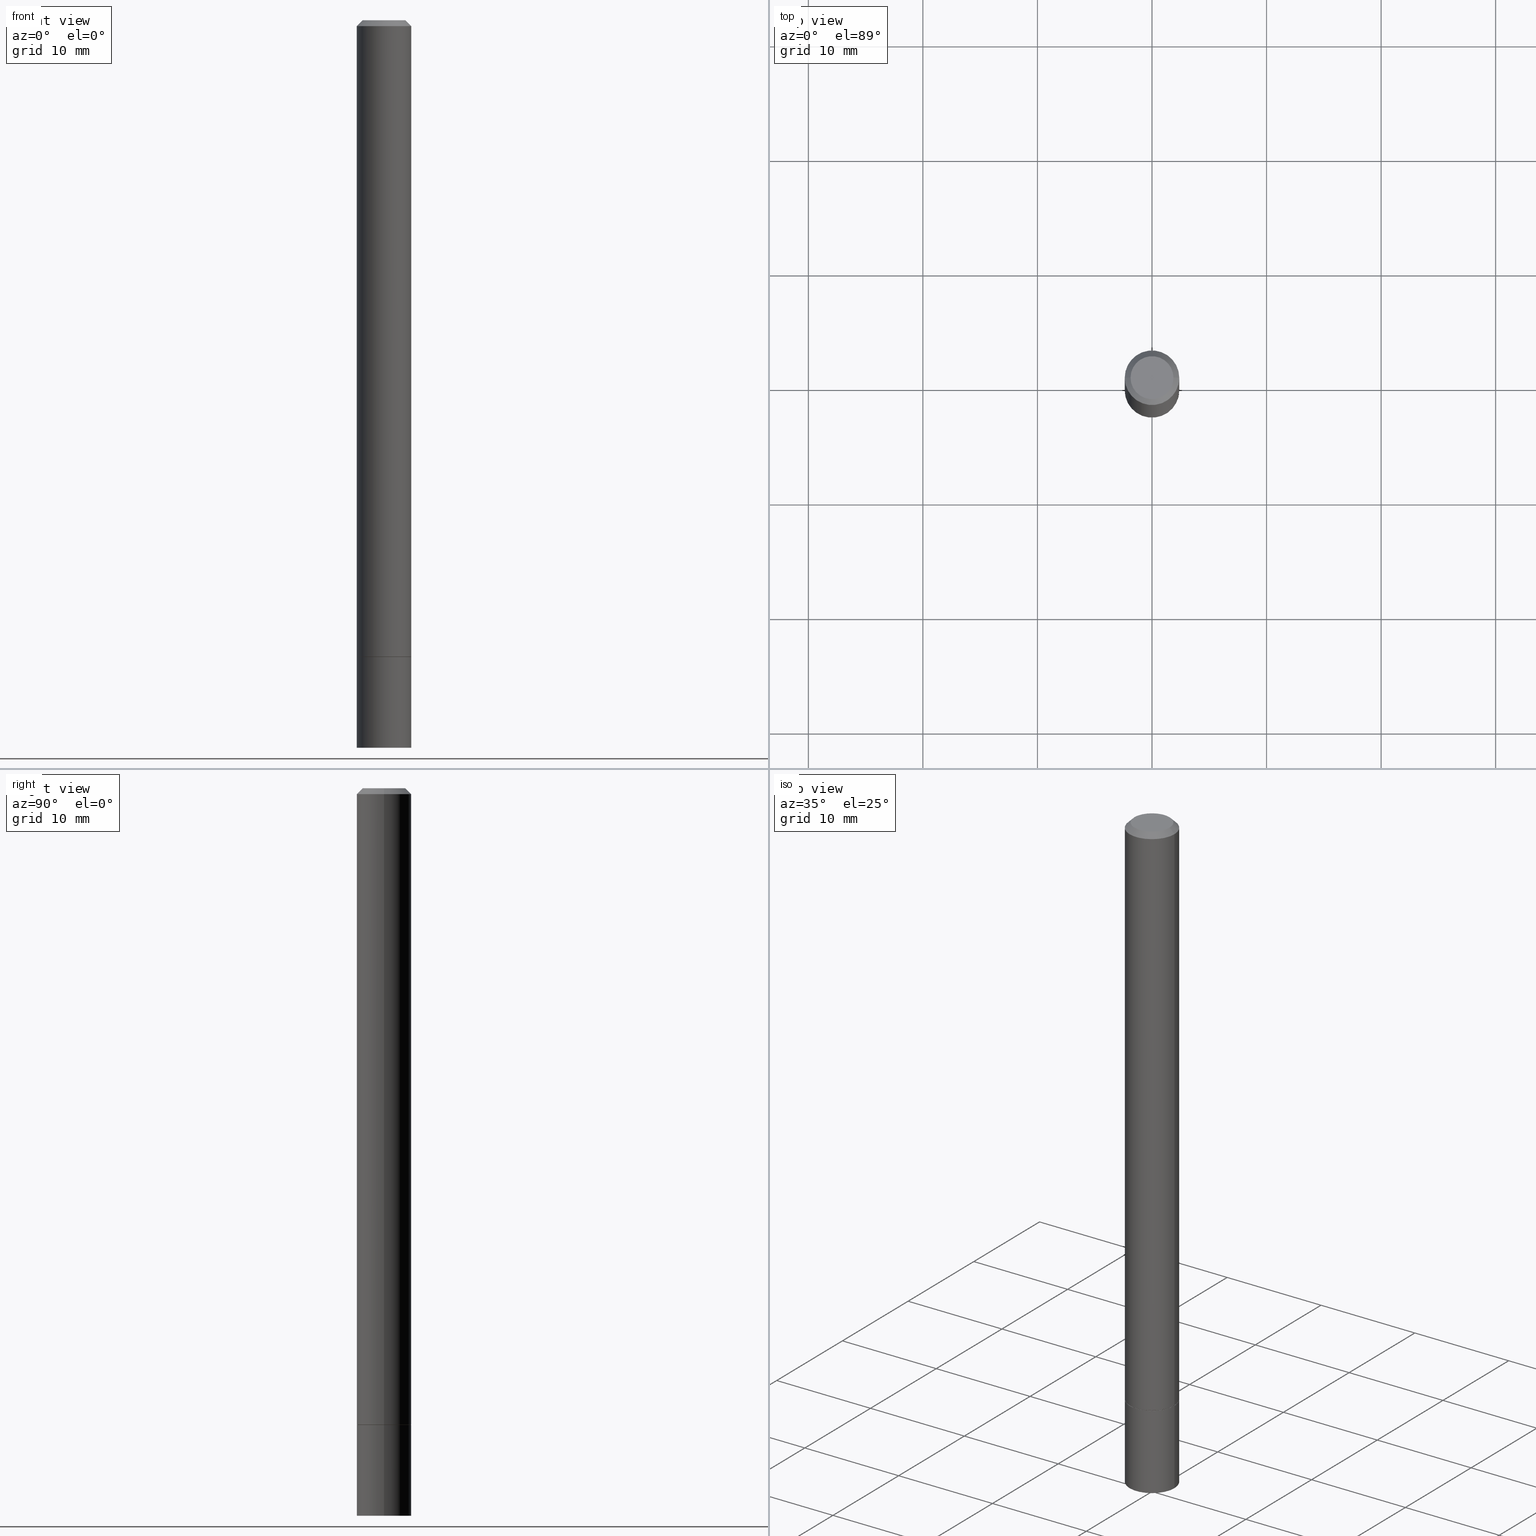
[diagram: canonical four-view strip — front | top / right | iso, engineering-drawing reading convention]
A machine part, canonical four-view strip (front | top / right | iso — engineering-drawing reading convention). The complete STEP part file that produces these views, byte-faithful:
ISO-10303-21;
HEADER;
FILE_DESCRIPTION (( 'STEP AP203' ),
    '1' );
FILE_NAME ('34857.STEP',
    '2024-02-27T17:55:11',
    ( '' ),
    ( '' ),
    'SwSTEP 2.0',
    'SolidWorks 2023',
    '' );
FILE_SCHEMA (( 'CONFIG_CONTROL_DESIGN' ));
ENDSEC;

DATA;
#1 = DIRECTION ( 'NONE',  ( -2.445468806185136597E-29, 3.491481338843145583E-15, 1.000000000000000000 ) ) ;
#2 = EDGE_LOOP ( 'NONE', ( #252, #256, #99, #11 ) ) ;
#3 = CONICAL_SURFACE ( 'NONE', #48, 0.09374999999999972244, 0.7853981633974477239 ) ;
#4 = DIRECTION ( 'NONE',  ( 1.000000000000000000, -6.982962677686268288E-15, 0.000000000000000000 ) ) ;
#5 = MECHANICAL_CONTEXT ( 'NONE', #170, 'mechanical' ) ;
#6 = DIRECTION ( 'NONE',  ( -1.000000000000000000, 6.982962677686265922E-15, -4.876176775795935793E-29 ) ) ;
#7 = CALENDAR_DATE ( 2024, 27, 2 ) ;
#8 = ORIENTED_EDGE ( 'NONE', *, *, #327, .F. ) ;
#9 = FACE_OUTER_BOUND ( 'NONE', #67, .T. ) ;
#10 = APPROVAL_DATE_TIME ( #160, #127 ) ;
#11 = ORIENTED_EDGE ( 'NONE', *, *, #143, .T. ) ;
#12 = AXIS2_PLACEMENT_3D ( 'NONE', #203, #227, #253 ) ;
#13 = CARTESIAN_POINT ( 'NONE',  ( 4.890937612370289799E-31, -6.982962677686315028E-17, -0.02000000000000006981 ) ) ;
#14 = CC_DESIGN_APPROVAL ( #218, ( #361 ) ) ;
#15 = APPLICATION_PROTOCOL_DEFINITION ( 'international standard', 'config_control_design', 1994, #195 ) ;
#16 = VERTEX_POINT ( 'NONE', #342 ) ;
#17 = APPROVAL_STATUS ( 'not_yet_approved' ) ;
#18 = ORIENTED_EDGE ( 'NONE', *, *, #199, .F. ) ;
#19 = DIRECTION ( 'NONE',  ( 1.000000000000000000, -6.982962677686268288E-15, 0.000000000000000000 ) ) ;
#20 = ADVANCED_FACE ( 'NONE', ( #92 ), #205, .F. ) ;
#21 = ORIENTED_EDGE ( 'NONE', *, *, #75, .F. ) ;
#22 = EDGE_CURVE ( 'NONE', #264, #46, #40, .T. ) ;
#23 = MANIFOLD_SOLID_BREP ( 'Body-Move/Copy2[1]', #54 ) ;
#24 = CIRCLE ( 'NONE', #274, 0.09374999999999972244 ) ;
#25 = EDGE_CURVE ( 'NONE', #312, #120, #208, .T. ) ;
#26 = AXIS2_PLACEMENT_3D ( 'NONE', #121, #52, #281 ) ;
#27 = EDGE_LOOP ( 'NONE', ( #161, #262 ) ) ;
#28 = AXIS2_PLACEMENT_3D ( 'NONE', #363, #211, #166 ) ;
#29 = AXIS2_PLACEMENT_3D ( 'NONE', #196, #1, #88 ) ;
#30 = FACE_OUTER_BOUND ( 'NONE', #345, .T. ) ;
#31 = EDGE_CURVE ( 'NONE', #16, #46, #175, .T. ) ;
#32 = FACE_OUTER_BOUND ( 'NONE', #27, .T. ) ;
#33 = ORIENTED_EDGE ( 'NONE', *, *, #143, .F. ) ;
#34 = FACE_OUTER_BOUND ( 'NONE', #2, .T. ) ;
#35 = VECTOR ( 'NONE', #124, 39.37007874015748143 ) ;
#36 = CARTESIAN_POINT ( 'NONE',  ( 6.113672015462842613E-29, -8.728703347107864943E-15, -2.500000000000000000 ) ) ;
#37 = PERSON_AND_ORGANIZATION_ROLE ( 'design_owner' ) ;
#38 = VERTEX_POINT ( 'NONE', #235 ) ;
#39 = DATE_TIME_ROLE ( 'classification_date' ) ;
#40 = LINE ( 'NONE', #343, #272 ) ;
#41 = DIRECTION ( 'NONE',  ( 0.000000000000000000, 0.000000000000000000, 1.000000000000000000 ) ) ;
#42 = ORIENTED_EDGE ( 'NONE', *, *, #75, .T. ) ;
#43 = VECTOR ( 'NONE', #331, 39.37007874015748143 ) ;
#44 = COORDINATED_UNIVERSAL_TIME_OFFSET ( 5, 0, .BEHIND. ) ;
#45 = DIRECTION ( 'NONE',  ( 1.000000000000000000, -6.982962677686263555E-15, 0.000000000000000000 ) ) ;
#46 = VERTEX_POINT ( 'NONE', #269 ) ;
#47 = DIRECTION ( 'NONE',  ( -2.445468806185136597E-29, 3.491481338843145583E-15, 1.000000000000000000 ) ) ;
#48 = AXIS2_PLACEMENT_3D ( 'NONE', #321, #66, #292 ) ;
#49 = UNCERTAINTY_MEASURE_WITH_UNIT (LENGTH_MEASURE( 1.000000000000000082E-05 ), #221, 'distance_accuracy_value', 'NONE');
#50 = AXIS2_PLACEMENT_3D ( 'NONE', #68, #100, #106 ) ;
#51 = PRODUCT_RELATED_PRODUCT_CATEGORY ( 'detail', '', ( #140 ) ) ;
#52 = DIRECTION ( 'NONE',  ( -2.445468806185136597E-29, 3.491481338843145583E-15, 1.000000000000000000 ) ) ;
#53 = EDGE_CURVE ( 'NONE', #65, #359, #210, .T. ) ;
#54 = CLOSED_SHELL ( 'NONE', ( #304, #267, #133, #307 ) ) ;
#55 = ORIENTED_EDGE ( 'NONE', *, *, #246, .T. ) ;
#56 = CC_DESIGN_APPROVAL ( #127, ( #154 ) ) ;
#57 = DIRECTION ( 'NONE',  ( -1.000000000000000000, 6.982962677686265922E-15, -4.876176775795935793E-29 ) ) ;
#58 = FACE_OUTER_BOUND ( 'NONE', #348, .T. ) ;
#59 = CARTESIAN_POINT ( 'NONE',  ( 0.000000000000000000, 0.000000000000000000, 0.000000000000000000 ) ) ;
#60 = APPROVAL_ROLE ( '' ) ;
#61 = EDGE_LOOP ( 'NONE', ( #266, #21 ) ) ;
#62 = AXIS2_PLACEMENT_3D ( 'NONE', #320, #291, #297 ) ;
#63 = CC_DESIGN_PERSON_AND_ORGANIZATION_ASSIGNMENT ( #232, #325, ( #154 ) ) ;
#64 = DIRECTION ( 'NONE',  ( -2.445468806185136597E-29, 3.491481338843145583E-15, 1.000000000000000000 ) ) ;
#65 = VERTEX_POINT ( 'NONE', #277 ) ;
#66 = DIRECTION ( 'NONE',  ( 2.445468806185136597E-29, -3.491481338843145583E-15, -1.000000000000000000 ) ) ;
#67 = EDGE_LOOP ( 'NONE', ( #233, #182, #317, #270 ) ) ;
#68 = CARTESIAN_POINT ( 'NONE',  ( 5.347017544723800702E-29, -7.634123947380537240E-15, -2.186500000000000110 ) ) ;
#69 = PERSON_AND_ORGANIZATION_ROLE ( 'creator' ) ;
#70 = DIRECTION ( 'NONE',  ( -0.7071067811865232589, 7.493145998870265808E-15, 0.7071067811865715536 ) ) ;
#71 = AXIS2_PLACEMENT_3D ( 'NONE', #296, #41, #265 ) ;
#72 = CALENDAR_DATE ( 2024, 27, 2 ) ;
#73 = ORIENTED_EDGE ( 'NONE', *, *, #199, .T. ) ;
#74 = DIRECTION ( 'NONE',  ( 2.438088387897960049E-29, -3.491481338843145188E-15, -1.000000000000000000 ) ) ;
#75 = EDGE_CURVE ( 'NONE', #65, #184, #242, .T. ) ;
#76 = CIRCLE ( 'NONE', #29, 0.09374999999999998612 ) ;
#77 = ADVANCED_FACE ( 'NONE', ( #103 ), #152, .T. ) ;
#78 = DESIGN_CONTEXT ( 'detailed design', #195, 'design' ) ;
#79 = CIRCLE ( 'NONE', #225, 0.09374999999999972244 ) ;
#80 = APPROVAL_PERSON_ORGANIZATION ( #293, #127, #153 ) ;
#81 = EDGE_CURVE ( 'NONE', #184, #167, #183, .T. ) ;
#82 = CARTESIAN_POINT ( 'NONE',  ( 4.890937612370289799E-31, -6.982962677686315028E-17, -0.02000000000000006981 ) ) ;
#83 = DIRECTION ( 'NONE',  ( 1.000000000000000000, -6.982962677686262766E-15, 0.000000000000000000 ) ) ;
#84 = VECTOR ( 'NONE', #70, 39.37007874015748854 ) ;
#85 = APPLICATION_PROTOCOL_DEFINITION ( 'international standard', 'config_control_design', 1994, #170 ) ;
#86 = ORIENTED_EDGE ( 'NONE', *, *, #31, .F. ) ;
#87 = CARTESIAN_POINT ( 'NONE',  ( 0.09374999999999972244, -7.130013140679423114E-16, -0.02000000000000006981 ) ) ;
#88 = DIRECTION ( 'NONE',  ( 1.000000000000000000, -6.982962677686263555E-15, 0.000000000000000000 ) ) ;
#89 = DIRECTION ( 'NONE',  ( 2.438088387897960049E-29, -3.491481338843145188E-15, -1.000000000000000000 ) ) ;
#90 = DIRECTION ( 'NONE',  ( 2.438088387897960049E-29, -3.491481338843145188E-15, -1.000000000000000000 ) ) ;
#91 = COORDINATED_UNIVERSAL_TIME_OFFSET ( 5, 0, .BEHIND. ) ;
#92 = FACE_OUTER_BOUND ( 'NONE', #61, .T. ) ;
#93 = CIRCLE ( 'NONE', #26, 0.09374999999999998612 ) ;
#94 = CIRCLE ( 'NONE', #163, 0.09374999999999998612 ) ;
#95 = DIRECTION ( 'NONE',  ( -2.445468806185136877E-29, 3.491481338843145188E-15, 1.000000000000000000 ) ) ;
#96 = CYLINDRICAL_SURFACE ( 'NONE', #303, 0.09374999999999998612 ) ;
#97 = PRODUCT_DEFINITION_SHAPE ( 'NONE', 'NONE',  #212 ) ;
#98 = SHAPE_DEFINITION_REPRESENTATION ( #97, #202 ) ;
#99 = ORIENTED_EDGE ( 'NONE', *, *, #25, .T. ) ;
#100 = DIRECTION ( 'NONE',  ( -2.445468806185136597E-29, 3.491481338843145583E-15, 1.000000000000000000 ) ) ;
#101 = PERSON_AND_ORGANIZATION ( #107, #280 ) ;
#102 = ORIENTED_EDGE ( 'NONE', *, *, #192, .F. ) ;
#103 = FACE_OUTER_BOUND ( 'NONE', #200, .T. ) ;
#104 = VECTOR ( 'NONE', #118, 39.37007874015748143 ) ;
#105 = ORIENTED_EDGE ( 'NONE', *, *, #168, .F. ) ;
#106 = DIRECTION ( 'NONE',  ( 1.000000000000000000, -6.982962677686263555E-15, 0.000000000000000000 ) ) ;
#107 = PERSON ( 'UNSPECIFIED', 'UNSPECIFIED', 'UNSPECIFIED', ('UNSPECIFIED'), ('UNSPECIFIED'), ('UNSPECIFIED') ) ;
#108 = ADVANCED_FACE ( 'NONE', ( #34 ), #302, .T. ) ;
#109 = DIRECTION ( 'NONE',  ( 1.000000000000000000, -6.982962677686266711E-15, 4.876176775795936353E-29 ) ) ;
#110 = DIRECTION ( 'NONE',  ( -2.445468806185136597E-29, 3.491481338843145583E-15, 1.000000000000000000 ) ) ;
#111 = AXIS2_PLACEMENT_3D ( 'NONE', #186, #135, #45 ) ;
#112 = LOCAL_TIME ( 12, 55, 11.00000000000000000, #44 ) ;
#113 = EDGE_CURVE ( 'NONE', #214, #16, #313, .T. ) ;
#114 = FACE_OUTER_BOUND ( 'NONE', #326, .T. ) ;
#115 = ORIENTED_EDGE ( 'NONE', *, *, #351, .F. ) ;
#116 = DIRECTION ( 'NONE',  ( -2.445468806185136597E-29, 3.491481338843145583E-15, 1.000000000000000000 ) ) ;
#117 = CARTESIAN_POINT ( 'NONE',  ( 0.000000000000000000, 0.000000000000000000, 0.000000000000000000 ) ) ;
#118 = DIRECTION ( 'NONE',  ( -2.445468806185136877E-29, 3.491481338843145188E-15, 1.000000000000000000 ) ) ;
#119 = DIRECTION ( 'NONE',  ( 1.000000000000000000, -6.982962677686266711E-15, 4.876176775795936353E-29 ) ) ;
#120 = VERTEX_POINT ( 'NONE', #228 ) ;
#121 = CARTESIAN_POINT ( 'NONE',  ( 6.113672015462842613E-29, -8.728703347107864943E-15, -2.500000000000000000 ) ) ;
#122 = CARTESIAN_POINT ( 'NONE',  ( -0.09374999999999984734, 6.661338147750928396E-16, -4.611501647113966288E-30 ) ) ;
#123 = ORIENTED_EDGE ( 'NONE', *, *, #53, .F. ) ;
#124 = DIRECTION ( 'NONE',  ( 0.7071067811865471286, -7.319954787623254468E-15, -0.7071067811865479058 ) ) ;
#125 = APPROVAL ( #17, 'UNSPECIFIED' ) ;
#126 = DATE_AND_TIME ( #268, #176 ) ;
#127 = APPROVAL ( #263, 'UNSPECIFIED' ) ;
#128 = PERSON_AND_ORGANIZATION ( #107, #280 ) ;
#129 = ORIENTED_EDGE ( 'NONE', *, *, #260, .T. ) ;
#130 = DIRECTION ( 'NONE',  ( 1.000000000000000000, -6.982962677686262766E-15, 0.000000000000000000 ) ) ;
#131 = ORIENTED_EDGE ( 'NONE', *, *, #25, .F. ) ;
#132 = VECTOR ( 'NONE', #165, 39.37007874015748143 ) ;
#133 = ADVANCED_FACE ( 'NONE', ( #32 ), #249, .F. ) ;
#134 = CALENDAR_DATE ( 2024, 27, 2 ) ;
#135 = DIRECTION ( 'NONE',  ( -2.445468806185136597E-29, 3.491481338843145583E-15, 1.000000000000000000 ) ) ;
#136 = PERSON_AND_ORGANIZATION ( #107, #280 ) ;
#137 = ORIENTED_EDGE ( 'NONE', *, *, #113, .F. ) ;
#138 = DIRECTION ( 'NONE',  ( -1.000000000000000000, 6.982962677686265922E-15, -4.876176775795935793E-29 ) ) ;
#139 = ORIENTED_EDGE ( 'NONE', *, *, #327, .T. ) ;
#140 = PRODUCT ( '34857', '34857', '', ( #5 ) ) ;
#141 = EDGE_CURVE ( 'NONE', #184, #65, #360, .T. ) ;
#142 = MANIFOLD_SOLID_BREP ( 'Body-Move/Copy2[2]', #329 ) ;
#143 = EDGE_CURVE ( 'NONE', #120, #222, #79, .T. ) ;
#144 = VECTOR ( 'NONE', #147, 39.37007874015748854 ) ;
#145 = LOCAL_TIME ( 12, 55, 11.00000000000000000, #341 ) ;
#146 = ORIENTED_EDGE ( 'NONE', *, *, #322, .F. ) ;
#147 = DIRECTION ( 'NONE',  ( 0.7071067811865232589, -2.468850131082003836E-15, 0.7071067811865715536 ) ) ;
#148 = APPROVAL_PERSON_ORGANIZATION ( #290, #218, #60 ) ;
#149 = CYLINDRICAL_SURFACE ( 'NONE', #330, 0.09374999999999998612 ) ;
#150 = CARTESIAN_POINT ( 'NONE',  ( 0.09374999999999998612, -8.288776698413623955E-15, -2.186500000000000110 ) ) ;
#151 = EDGE_LOOP ( 'NONE', ( #137, #73, #159, #86 ) ) ;
#152 = CONICAL_SURFACE ( 'NONE', #169, 0.09274999999999998523, 0.7853981633974141952 ) ;
#153 = APPROVAL_ROLE ( '' ) ;
#154 = SECURITY_CLASSIFICATION ( '', '', #258 ) ;
#155 = CARTESIAN_POINT ( 'NONE',  ( 0.09274999999999998523, -8.285285217074782526E-15, -2.187500000000000000 ) ) ;
#156 = ORIENTED_EDGE ( 'NONE', *, *, #173, .T. ) ;
#157 = CC_DESIGN_DATE_AND_TIME_ASSIGNMENT ( #189, #340, ( #212 ) ) ;
#158 = DATE_AND_TIME ( #72, #243 ) ;
#159 = ORIENTED_EDGE ( 'NONE', *, *, #22, .T. ) ;
#160 = DATE_AND_TIME ( #7, #287 ) ;
#161 = ORIENTED_EDGE ( 'NONE', *, *, #314, .T. ) ;
#162 = AXIS2_PLACEMENT_3D ( 'NONE', #259, #89, #6 ) ;
#163 = AXIS2_PLACEMENT_3D ( 'NONE', #193, #110, #201 ) ;
#164 = COORDINATED_UNIVERSAL_TIME_OFFSET ( 5, 0, .BEHIND. ) ;
#165 = DIRECTION ( 'NONE',  ( -0.7071067811865471286, 2.468850131082252722E-15, -0.7071067811865479058 ) ) ;
#166 = DIRECTION ( 'NONE',  ( 1.000000000000000000, -6.982962677686262766E-15, 0.000000000000000000 ) ) ;
#167 = VERTEX_POINT ( 'NONE', #150 ) ;
#168 = EDGE_CURVE ( 'NONE', #38, #312, #337, .T. ) ;
#169 = AXIS2_PLACEMENT_3D ( 'NONE', #365, #181, #362 ) ;
#170 = APPLICATION_CONTEXT ( 'configuration controlled 3d designs of mechanical parts and assemblies' ) ;
#171 = CIRCLE ( 'NONE', #50, 0.09374999999999998612 ) ;
#172 = DIRECTION ( 'NONE',  ( 1.000000000000000000, -6.982962677686266711E-15, 4.876176775795935793E-29 ) ) ;
#173 = EDGE_CURVE ( 'NONE', #312, #38, #355, .T. ) ;
#174 = CARTESIAN_POINT ( 'NONE',  ( -0.09374999999999998612, 6.661338147750938256E-16, -4.611501647113973295E-30 ) ) ;
#175 = CIRCLE ( 'NONE', #111, 0.09374999999999998612 ) ;
#176 = LOCAL_TIME ( 12, 55, 11.00000000000000000, #164 ) ;
#177 = ORIENTED_EDGE ( 'NONE', *, *, #322, .T. ) ;
#178 = DIRECTION ( 'NONE',  ( 1.000000000000000000, -6.982962677686265922E-15, 4.873299312102244827E-29 ) ) ;
#179 = EDGE_CURVE ( 'NONE', #38, #222, #197, .T. ) ;
#180 = EDGE_LOOP ( 'NONE', ( #129, #139, #190, #115 ) ) ;
#181 = DIRECTION ( 'NONE',  ( -2.445468806185136597E-29, 3.491481338843145583E-15, 1.000000000000000000 ) ) ;
#182 = ORIENTED_EDGE ( 'NONE', *, *, #53, .T. ) ;
#183 = LINE ( 'NONE', #334, #144 ) ;
#184 = VERTEX_POINT ( 'NONE', #155 ) ;
#185 = COORDINATED_UNIVERSAL_TIME_OFFSET ( 5, 0, .BEHIND. ) ;
#186 = CARTESIAN_POINT ( 'NONE',  ( 5.349463013529986305E-29, -7.637615428719381825E-15, -2.187500000000000000 ) ) ;
#187 = ORIENTED_EDGE ( 'NONE', *, *, #81, .T. ) ;
#188 = CONICAL_SURFACE ( 'NONE', #198, 0.09274999999999998523, 0.7853981633974141952 ) ;
#189 = DATE_AND_TIME ( #234, #112 ) ;
#190 = ORIENTED_EDGE ( 'NONE', *, *, #246, .F. ) ;
#191 = AXIS2_PLACEMENT_3D ( 'NONE', #336, #90, #57 ) ;
#192 = EDGE_CURVE ( 'NONE', #264, #214, #319, .T. ) ;
#193 = CARTESIAN_POINT ( 'NONE',  ( 5.347017544723800702E-29, -7.634123947380537240E-15, -2.186500000000000110 ) ) ;
#194 = CC_DESIGN_PERSON_AND_ORGANIZATION_ASSIGNMENT ( #128, #347, ( #361 ) ) ;
#195 = APPLICATION_CONTEXT ( 'configuration controlled 3d designs of mechanical parts and assemblies' ) ;
#196 = CARTESIAN_POINT ( 'NONE',  ( 5.349463013529986305E-29, -7.637615428719381825E-15, -2.187500000000000000 ) ) ;
#197 = LINE ( 'NONE', #224, #35 ) ;
#198 = AXIS2_PLACEMENT_3D ( 'NONE', #354, #47, #130 ) ;
#199 = EDGE_CURVE ( 'NONE', #214, #264, #93, .T. ) ;
#200 = EDGE_LOOP ( 'NONE', ( #123, #42, #187, #146 ) ) ;
#201 = DIRECTION ( 'NONE',  ( 1.000000000000000000, -6.982962677686263555E-15, 0.000000000000000000 ) ) ;
#202 = ADVANCED_BREP_SHAPE_REPRESENTATION ( '34857', ( #23, #142, #71 ), #217 ) ;
#203 = CARTESIAN_POINT ( 'NONE',  ( 4.890937612370289799E-31, -6.982962677686315028E-17, -0.02000000000000006981 ) ) ;
#204 = AXIS2_PLACEMENT_3D ( 'NONE', #36, #309, #366 ) ;
#205 = PLANE ( 'NONE',  #62 ) ;
#206 = DIRECTION ( 'NONE',  ( -2.445468806185136597E-29, 3.491481338843145583E-15, 1.000000000000000000 ) ) ;
#207 = APPROVAL_DATE_TIME ( #209, #125 ) ;
#208 = LINE ( 'NONE', #323, #132 ) ;
#209 = DATE_AND_TIME ( #134, #145 ) ;
#210 = LINE ( 'NONE', #324, #84 ) ;
#211 = DIRECTION ( 'NONE',  ( -2.445468806185136597E-29, 3.491481338843145583E-15, 1.000000000000000000 ) ) ;
#212 = PRODUCT_DEFINITION ( 'UNKNOWN', '', #361, #78 ) ;
#213 = APPROVAL_ROLE ( '' ) ;
#214 = VERTEX_POINT ( 'NONE', #338 ) ;
#215 = CC_DESIGN_SECURITY_CLASSIFICATION ( #154, ( #361 ) ) ;
#216 = CARTESIAN_POINT ( 'NONE',  ( 6.546527510331485422E-16, 0.09374999999999127087, -2.500000000000000444 ) ) ;
#217 =( GEOMETRIC_REPRESENTATION_CONTEXT ( 3 ) GLOBAL_UNCERTAINTY_ASSIGNED_CONTEXT ( ( #49 ) ) GLOBAL_UNIT_ASSIGNED_CONTEXT ( ( #221, #333, #364 ) ) REPRESENTATION_CONTEXT ( 'NONE', 'WORKASPACE' ) );
#218 = APPROVAL ( #261, 'UNSPECIFIED' ) ;
#219 = CARTESIAN_POINT ( 'NONE',  ( -0.07374999999999973244, 5.499083108677911763E-16, -5.122214988120865778E-17 ) ) ;
#220 = APPROVAL_PERSON_ORGANIZATION ( #101, #125, #213 ) ;
#221 =( CONVERSION_BASED_UNIT ( 'INCH', #251 ) LENGTH_UNIT ( ) NAMED_UNIT ( #248 ) );
#222 = VERTEX_POINT ( 'NONE', #87 ) ;
#223 = ORIENTED_EDGE ( 'NONE', *, *, #179, .T. ) ;
#224 = CARTESIAN_POINT ( 'NONE',  ( 0.09374999999999972244, -7.130013140679423114E-16, -0.02000000000000006981 ) ) ;
#225 = AXIS2_PLACEMENT_3D ( 'NONE', #82, #64, #4 ) ;
#226 = FACE_OUTER_BOUND ( 'NONE', #151, .T. ) ;
#227 = DIRECTION ( 'NONE',  ( 2.445468806185136597E-29, -3.491481338843145583E-15, -1.000000000000000000 ) ) ;
#228 = CARTESIAN_POINT ( 'NONE',  ( -0.09374999999999972244, 5.848231242562223324E-16, -0.02000000000000006981 ) ) ;
#229 = PERSON_AND_ORGANIZATION ( #107, #280 ) ;
#230 = EDGE_LOOP ( 'NONE', ( #102, #18 ) ) ;
#231 = CC_DESIGN_APPROVAL ( #125, ( #212 ) ) ;
#232 = PERSON_AND_ORGANIZATION ( #107, #280 ) ;
#233 = ORIENTED_EDGE ( 'NONE', *, *, #141, .T. ) ;
#234 = CALENDAR_DATE ( 2024, 27, 2 ) ;
#235 = CARTESIAN_POINT ( 'NONE',  ( 0.07374999999999973244, -6.094815207017955281E-16, -5.122214988120099720E-17 ) ) ;
#236 = FACE_OUTER_BOUND ( 'NONE', #230, .T. ) ;
#237 = ADVANCED_FACE ( 'NONE', ( #58 ), #339, .F. ) ;
#238 = PERSON_AND_ORGANIZATION ( #107, #280 ) ;
#239 = ORIENTED_EDGE ( 'NONE', *, *, #168, .T. ) ;
#240 = CYLINDRICAL_SURFACE ( 'NONE', #332, 0.09374999999999984734 ) ;
#241 = ORIENTED_EDGE ( 'NONE', *, *, #351, .T. ) ;
#242 = CIRCLE ( 'NONE', #28, 0.09274999999999998523 ) ;
#243 = LOCAL_TIME ( 12, 55, 11.00000000000000000, #185 ) ;
#244 = CARTESIAN_POINT ( 'NONE',  ( 0.09374999999999998612, -9.383356098140953236E-15, -2.500000000000000000 ) ) ;
#245 = ADVANCED_FACE ( 'NONE', ( #9 ), #188, .T. ) ;
#246 = EDGE_CURVE ( 'NONE', #222, #120, #24, .T. ) ;
#247 = ORIENTED_EDGE ( 'NONE', *, *, #22, .F. ) ;
#248 = DIMENSIONAL_EXPONENTS ( 1.000000000000000000, 0.000000000000000000, 0.000000000000000000, 0.000000000000000000, 0.000000000000000000, 0.000000000000000000, 0.000000000000000000 ) ;
#249 = PLANE ( 'NONE',  #191 ) ;
#250 = ADVANCED_FACE ( 'NONE', ( #295 ), #3, .T. ) ;
#251 = LENGTH_MEASURE_WITH_UNIT ( LENGTH_MEASURE( 0.02539999999999999897 ), #306 );
#252 = ORIENTED_EDGE ( 'NONE', *, *, #179, .F. ) ;
#253 = DIRECTION ( 'NONE',  ( -1.000000000000000000, 6.982962677686265133E-15, 0.000000000000000000 ) ) ;
#254 = CARTESIAN_POINT ( 'NONE',  ( 1.252621697202263706E-45, -1.788411804456536750E-31, -5.122214988120493535E-17 ) ) ;
#255 = DIRECTION ( 'NONE',  ( -2.445468806185136597E-29, 3.491481338843145583E-15, 1.000000000000000000 ) ) ;
#256 = ORIENTED_EDGE ( 'NONE', *, *, #173, .F. ) ;
#257 = AXIS2_PLACEMENT_3D ( 'NONE', #216, #74, #138 ) ;
#258 = SECURITY_CLASSIFICATION_LEVEL ( 'unclassified' ) ;
#259 = CARTESIAN_POINT ( 'NONE',  ( 5.149934974793602175E-16, 0.07374999999999973244, -2.831078236802835070E-16 ) ) ;
#260 = EDGE_CURVE ( 'NONE', #167, #359, #171, .T. ) ;
#261 = APPROVAL_STATUS ( 'not_yet_approved' ) ;
#262 = ORIENTED_EDGE ( 'NONE', *, *, #31, .T. ) ;
#263 = APPROVAL_STATUS ( 'not_yet_approved' ) ;
#264 = VERTEX_POINT ( 'NONE', #244 ) ;
#265 = DIRECTION ( 'NONE',  ( 1.000000000000000000, 0.000000000000000000, 0.000000000000000000 ) ) ;
#266 = ORIENTED_EDGE ( 'NONE', *, *, #141, .F. ) ;
#267 = ADVANCED_FACE ( 'NONE', ( #236 ), #346, .T. ) ;
#268 = CALENDAR_DATE ( 2024, 27, 2 ) ;
#269 = CARTESIAN_POINT ( 'NONE',  ( 0.09374999999999998612, -8.292268179752468540E-15, -2.187500000000000000 ) ) ;
#270 = ORIENTED_EDGE ( 'NONE', *, *, #81, .F. ) ;
#271 = CC_DESIGN_PERSON_AND_ORGANIZATION_ASSIGNMENT ( #229, #344, ( #361 ) ) ;
#272 = VECTOR ( 'NONE', #95, 39.37007874015748143 ) ;
#273 = CARTESIAN_POINT ( 'NONE',  ( 0.000000000000000000, 0.000000000000000000, 0.000000000000000000 ) ) ;
#274 = AXIS2_PLACEMENT_3D ( 'NONE', #13, #206, #19 ) ;
#275 = ADVANCED_FACE ( 'NONE', ( #328 ), #240, .T. ) ;
#276 = AXIS2_PLACEMENT_3D ( 'NONE', #59, #279, #119 ) ;
#277 = CARTESIAN_POINT ( 'NONE',  ( -0.09274999999999998523, -6.973288586953666507E-15, -2.187500000000000000 ) ) ;
#278 = CC_DESIGN_PERSON_AND_ORGANIZATION_ASSIGNMENT ( #238, #37, ( #140 ) ) ;
#279 = DIRECTION ( 'NONE',  ( -2.445468806185136597E-29, 3.491481338843145583E-15, 1.000000000000000000 ) ) ;
#280 = ORGANIZATION ( 'UNSPECIFIED', 'UNSPECIFIED', '' ) ;
#281 = DIRECTION ( 'NONE',  ( 1.000000000000000000, -6.982962677686273810E-15, 0.000000000000000000 ) ) ;
#282 = CARTESIAN_POINT ( 'NONE',  ( 0.09374999999999984734, -6.546527510330864194E-16, 4.571415727308682799E-30 ) ) ;
#283 = CARTESIAN_POINT ( 'NONE',  ( 5.349463013529986305E-29, -7.637615428719381825E-15, -2.187500000000000000 ) ) ;
#284 = LINE ( 'NONE', #122, #43 ) ;
#285 = CC_DESIGN_PERSON_AND_ORGANIZATION_ASSIGNMENT ( #136, #69, ( #212 ) ) ;
#286 = AXIS2_PLACEMENT_3D ( 'NONE', #316, #116, #311 ) ;
#287 = LOCAL_TIME ( 12, 55, 11.00000000000000000, #91 ) ;
#288 = EDGE_LOOP ( 'NONE', ( #105, #223, #55, #131 ) ) ;
#289 = DIRECTION ( 'NONE',  ( -2.445468806185136597E-29, 3.491481338843145583E-15, 1.000000000000000000 ) ) ;
#290 = PERSON_AND_ORGANIZATION ( #107, #280 ) ;
#291 = DIRECTION ( 'NONE',  ( -2.438088387897960049E-29, 3.491481338843145188E-15, 1.000000000000000000 ) ) ;
#292 = DIRECTION ( 'NONE',  ( -1.000000000000000000, 6.982962677686265133E-15, 0.000000000000000000 ) ) ;
#293 = PERSON_AND_ORGANIZATION ( #107, #280 ) ;
#294 = ORIENTED_EDGE ( 'NONE', *, *, #113, .T. ) ;
#295 = FACE_OUTER_BOUND ( 'NONE', #288, .T. ) ;
#296 = CARTESIAN_POINT ( 'NONE',  ( 0.000000000000000000, 0.000000000000000000, 0.000000000000000000 ) ) ;
#297 = DIRECTION ( 'NONE',  ( 1.000000000000000000, -6.982962677686265922E-15, 4.876176775795935793E-29 ) ) ;
#298 = APPROVAL_DATE_TIME ( #126, #218 ) ;
#299 = ORIENTED_EDGE ( 'NONE', *, *, #314, .F. ) ;
#300 = DIRECTION ( 'NONE',  ( -2.445468806185136597E-29, 3.491481338843145583E-15, 1.000000000000000000 ) ) ;
#301 = CC_DESIGN_DATE_AND_TIME_ASSIGNMENT ( #158, #39, ( #154 ) ) ;
#302 = CONICAL_SURFACE ( 'NONE', #12, 0.09374999999999972244, 0.7853981633974477239 ) ;
#303 = AXIS2_PLACEMENT_3D ( 'NONE', #273, #335, #172 ) ;
#304 = ADVANCED_FACE ( 'NONE', ( #30 ), #96, .T. ) ;
#305 = AXIS2_PLACEMENT_3D ( 'NONE', #283, #318, #83 ) ;
#306 =( LENGTH_UNIT ( ) NAMED_UNIT ( * ) SI_UNIT ( $, .METRE. ) );
#307 = ADVANCED_FACE ( 'NONE', ( #226 ), #149, .T. ) ;
#308 = LINE ( 'NONE', #282, #352 ) ;
#309 = DIRECTION ( 'NONE',  ( -2.445468806185136597E-29, 3.491481338843145583E-15, 1.000000000000000000 ) ) ;
#310 = CYLINDRICAL_SURFACE ( 'NONE', #276, 0.09374999999999984734 ) ;
#311 = DIRECTION ( 'NONE',  ( 1.000000000000000000, -6.982962677686265922E-15, 4.873299312102244827E-29 ) ) ;
#312 = VERTEX_POINT ( 'NONE', #219 ) ;
#313 = LINE ( 'NONE', #174, #104 ) ;
#314 = EDGE_CURVE ( 'NONE', #46, #16, #76, .T. ) ;
#315 = DIRECTION ( 'NONE',  ( -2.445468806185136877E-29, 3.491481338843145188E-15, 1.000000000000000000 ) ) ;
#316 = CARTESIAN_POINT ( 'NONE',  ( 1.252621697202263706E-45, -1.788411804456536750E-31, -5.122214988120493535E-17 ) ) ;
#317 = ORIENTED_EDGE ( 'NONE', *, *, #260, .F. ) ;
#318 = DIRECTION ( 'NONE',  ( -2.445468806185136597E-29, 3.491481338843145583E-15, 1.000000000000000000 ) ) ;
#319 = CIRCLE ( 'NONE', #204, 0.09374999999999998612 ) ;
#320 = CARTESIAN_POINT ( 'NONE',  ( 5.349463013529986305E-29, -7.637615428719381825E-15, -2.187500000000000000 ) ) ;
#321 = CARTESIAN_POINT ( 'NONE',  ( 4.890937612370289799E-31, -6.982962677686315028E-17, -0.02000000000000006981 ) ) ;
#322 = EDGE_CURVE ( 'NONE', #359, #167, #94, .T. ) ;
#323 = CARTESIAN_POINT ( 'NONE',  ( -0.09374999999999972244, 5.848231242562223324E-16, -0.02000000000000006981 ) ) ;
#324 = CARTESIAN_POINT ( 'NONE',  ( -0.09274999999999998523, -6.978587041301888120E-15, -2.187500000000000000 ) ) ;
#325 = PERSON_AND_ORGANIZATION_ROLE ( 'classification_officer' ) ;
#326 = EDGE_LOOP ( 'NONE', ( #8, #177, #241, #33 ) ) ;
#327 = EDGE_CURVE ( 'NONE', #359, #120, #284, .T. ) ;
#328 = FACE_OUTER_BOUND ( 'NONE', #180, .T. ) ;
#329 = CLOSED_SHELL ( 'NONE', ( #245, #275, #250, #108, #357, #77, #20, #237 ) ) ;
#330 = AXIS2_PLACEMENT_3D ( 'NONE', #117, #255, #356 ) ;
#331 = DIRECTION ( 'NONE',  ( -2.445468806185136877E-29, 3.491481338843145188E-15, 1.000000000000000000 ) ) ;
#332 = AXIS2_PLACEMENT_3D ( 'NONE', #349, #300, #109 ) ;
#333 =( NAMED_UNIT ( * ) PLANE_ANGLE_UNIT ( ) SI_UNIT ( $, .RADIAN. ) );
#334 = CARTESIAN_POINT ( 'NONE',  ( 0.09274999999999998523, -8.285285217074782526E-15, -2.187500000000000000 ) ) ;
#335 = DIRECTION ( 'NONE',  ( -2.445468806185136597E-29, 3.491481338843145583E-15, 1.000000000000000000 ) ) ;
#336 = CARTESIAN_POINT ( 'NONE',  ( 6.546527510331408508E-16, 0.09374999999999235334, -2.187500000000000444 ) ) ;
#337 = CIRCLE ( 'NONE', #286, 0.07374999999999973244 ) ;
#338 = CARTESIAN_POINT ( 'NONE',  ( -0.09374999999999998612, -7.517025573138528671E-15, -2.500000000000000000 ) ) ;
#339 = PLANE ( 'NONE',  #162 ) ;
#340 = DATE_TIME_ROLE ( 'creation_date' ) ;
#341 = COORDINATED_UNIVERSAL_TIME_OFFSET ( 5, 0, .BEHIND. ) ;
#342 = CARTESIAN_POINT ( 'NONE',  ( -0.09374999999999998612, -7.517025573138528671E-15, -2.187500000000000000 ) ) ;
#343 = CARTESIAN_POINT ( 'NONE',  ( 0.09374999999999998612, -6.546527510330874055E-16, 4.571415727308689105E-30 ) ) ;
#344 = PERSON_AND_ORGANIZATION_ROLE ( 'design_supplier' ) ;
#345 = EDGE_LOOP ( 'NONE', ( #353, #294, #299, #247 ) ) ;
#346 = PLANE ( 'NONE',  #257 ) ;
#347 = PERSON_AND_ORGANIZATION_ROLE ( 'creator' ) ;
#348 = EDGE_LOOP ( 'NONE', ( #156, #239 ) ) ;
#349 = CARTESIAN_POINT ( 'NONE',  ( 0.000000000000000000, 0.000000000000000000, 0.000000000000000000 ) ) ;
#350 = AXIS2_PLACEMENT_3D ( 'NONE', #254, #289, #178 ) ;
#351 = EDGE_CURVE ( 'NONE', #167, #222, #308, .T. ) ;
#352 = VECTOR ( 'NONE', #315, 39.37007874015748143 ) ;
#353 = ORIENTED_EDGE ( 'NONE', *, *, #192, .T. ) ;
#354 = CARTESIAN_POINT ( 'NONE',  ( 5.349463013529986305E-29, -7.637615428719381825E-15, -2.187500000000000000 ) ) ;
#355 = CIRCLE ( 'NONE', #350, 0.07374999999999973244 ) ;
#356 = DIRECTION ( 'NONE',  ( 1.000000000000000000, -6.982962677686266711E-15, 4.876176775795935793E-29 ) ) ;
#357 = ADVANCED_FACE ( 'NONE', ( #114 ), #310, .T. ) ;
#358 = CARTESIAN_POINT ( 'NONE',  ( -0.09375000000000001388, -3.185842972303600823E-15, -2.186500000000000110 ) ) ;
#359 = VERTEX_POINT ( 'NONE', #358 ) ;
#360 = CIRCLE ( 'NONE', #305, 0.09274999999999998523 ) ;
#361 = PRODUCT_DEFINITION_FORMATION_WITH_SPECIFIED_SOURCE ( 'ANY', '', #140, .NOT_KNOWN. ) ;
#362 = DIRECTION ( 'NONE',  ( 1.000000000000000000, -6.982962677686262766E-15, 0.000000000000000000 ) ) ;
#363 = CARTESIAN_POINT ( 'NONE',  ( 5.349463013529986305E-29, -7.637615428719381825E-15, -2.187500000000000000 ) ) ;
#364 =( NAMED_UNIT ( * ) SI_UNIT ( $, .STERADIAN. ) SOLID_ANGLE_UNIT ( ) );
#365 = CARTESIAN_POINT ( 'NONE',  ( 5.349463013529986305E-29, -7.637615428719381825E-15, -2.187500000000000000 ) ) ;
#366 = DIRECTION ( 'NONE',  ( 1.000000000000000000, -6.982962677686273810E-15, 0.000000000000000000 ) ) ;
ENDSEC;
END-ISO-10303-21;
